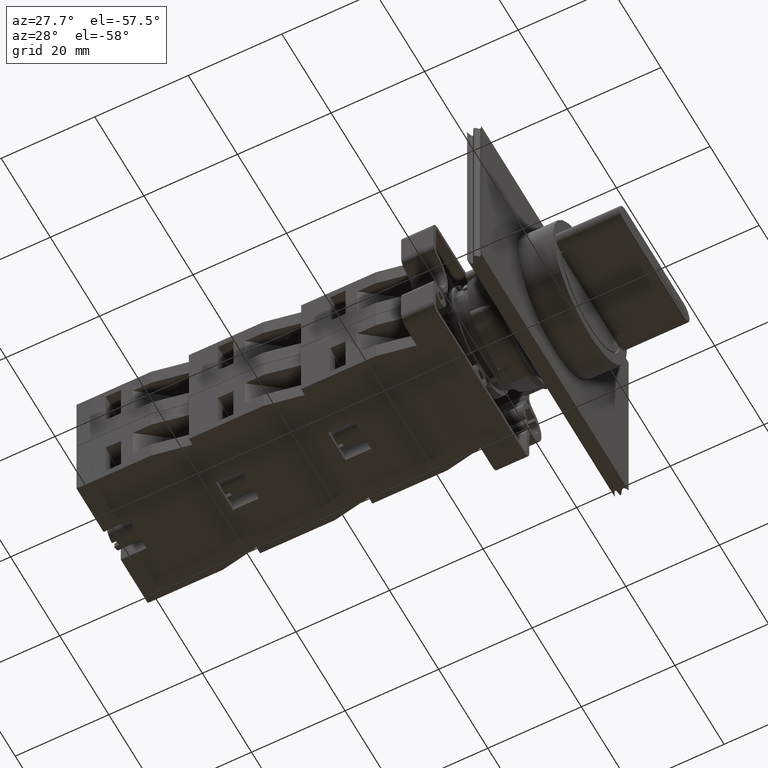
[diagram: clean part render]
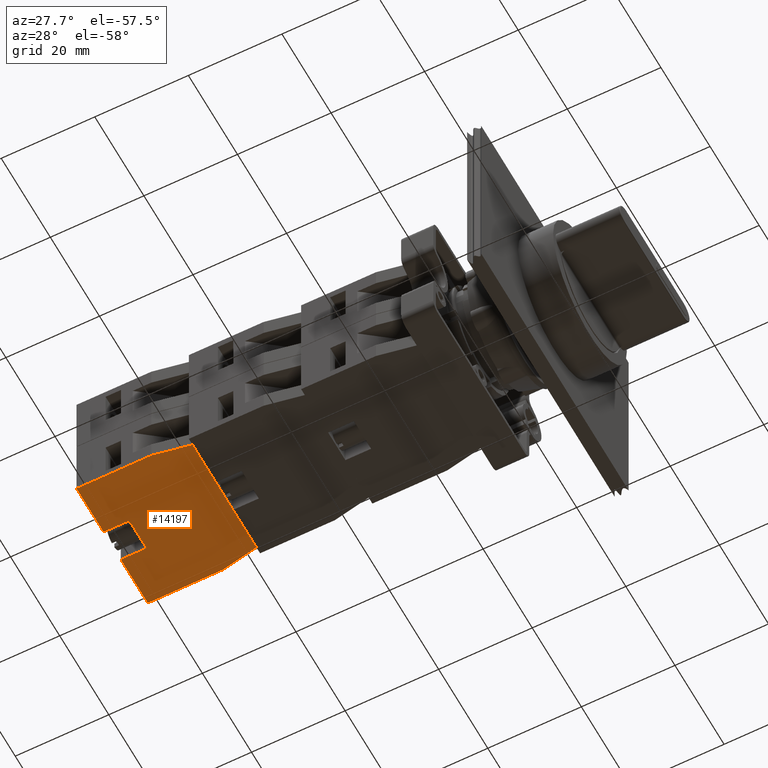
[diagram: same view with one face highlighted and labeled with its STEP entity id]
A machine part, auxiliary view. The second image highlights one B-rep face of the part: STEP entity #14197.
In plain terms, the highlighted planar face has unit normal (-0, 0, -1).
Its self-contained STEP definition (entity closure, byte-faithful):
#12500=CARTESIAN_POINT('',(-44.936741828918457,7.797073323279626,14.699999999999999));
#12501=VERTEX_POINT('',#12500);
#12508=CARTESIAN_POINT('',(-44.936741828918471,23.797073323279623,14.699999999999999));
#12509=VERTEX_POINT('',#12508);
#12510=CARTESIAN_POINT('',(-44.936741828918457,7.797073323279626,14.699999999999999));
#12511=DIRECTION('',(0.0,1.0,0.0));
#12512=VECTOR('',#12511,15.999999999999996);
#12513=LINE('',#12510,#12512);
#12514=EDGE_CURVE('',#12501,#12509,#12513,.T.);
#12581=CARTESIAN_POINT('',(-43.436741828918457,-0.202926676720380,14.699999999999999));
#12582=VERTEX_POINT('',#12581);
#12589=CARTESIAN_POINT('',(-43.436741828918457,-0.202926676720380,14.699999999999999));
#12590=DIRECTION('',(-0.184288535050185,0.982872186934322,0.0));
#12591=VECTOR('',#12590,8.139410298049860);
#12592=LINE('',#12589,#12591);
#12593=EDGE_CURVE('',#12582,#12501,#12592,.T.);
#12732=CARTESIAN_POINT('',(-17.436741828918457,-0.202926676720377,14.699999999999999));
#12733=VERTEX_POINT('',#12732);
#12740=CARTESIAN_POINT('',(-17.436741828918457,-0.202926676720377,14.699999999999999));
#12741=DIRECTION('',(-1.0,0.0,0.0));
#12742=VECTOR('',#12741,26.0);
#12743=LINE('',#12740,#12742);
#12744=EDGE_CURVE('',#12733,#12582,#12743,.T.);
#12825=CARTESIAN_POINT('',(-15.936741828918466,7.797073323279626,14.699999999999999));
#12826=VERTEX_POINT('',#12825);
#12833=CARTESIAN_POINT('',(-15.936741828918466,7.797073323279626,14.699999999999999));
#12834=DIRECTION('',(-0.184288535050184,-0.982872186934322,0.0));
#12835=VECTOR('',#12834,8.139410298049855);
#12836=LINE('',#12833,#12835);
#12837=EDGE_CURVE('',#12826,#12733,#12836,.T.);
#13932=CARTESIAN_POINT('',(-26.936741828918468,18.297073323279626,14.699999999999999));
#13933=VERTEX_POINT('',#13932);
#13942=CARTESIAN_POINT('',(-26.936741828918468,23.797073323279626,14.699999999999999));
#13943=VERTEX_POINT('',#13942);
#13944=CARTESIAN_POINT('',(-26.936741828918468,23.797073323279626,14.699999999999999));
#13945=DIRECTION('',(0.0,-1.0,0.0));
#13946=VECTOR('',#13945,5.500000000000000);
#13947=LINE('',#13944,#13946);
#13948=EDGE_CURVE('',#13943,#13933,#13947,.T.);
#14003=CARTESIAN_POINT('',(-33.936741828918464,18.297073323279619,14.699999999999999));
#14004=VERTEX_POINT('',#14003);
#14012=CARTESIAN_POINT('',(-33.936741828918464,23.797073323279623,14.699999999999999));
#14013=VERTEX_POINT('',#14012);
#14020=CARTESIAN_POINT('',(-33.936741828918464,18.297073323279619,14.699999999999999));
#14021=DIRECTION('',(0.0,1.0,0.0));
#14022=VECTOR('',#14021,5.500000000000004);
#14023=LINE('',#14020,#14022);
#14024=EDGE_CURVE('',#14004,#14013,#14023,.T.);
#14037=CARTESIAN_POINT('',(-26.936741828918468,18.297073323279626,14.699999999999999));
#14038=DIRECTION('',(-1.0,0.0,0.0));
#14039=VECTOR('',#14038,6.999999999999996);
#14040=LINE('',#14037,#14039);
#14041=EDGE_CURVE('',#13933,#14004,#14040,.T.);
#14057=CARTESIAN_POINT('',(-15.936741828918466,23.797073323279626,14.699999999999999));
#14058=VERTEX_POINT('',#14057);
#14059=CARTESIAN_POINT('',(-26.936741828918468,23.797073323279626,14.699999999999999));
#14060=DIRECTION('',(1.0,0.0,0.0));
#14061=VECTOR('',#14060,11.000000000000002);
#14062=LINE('',#14059,#14061);
#14063=EDGE_CURVE('',#13943,#14058,#14062,.T.);
#14080=CARTESIAN_POINT('',(-44.936741828918471,23.797073323279623,14.699999999999999));
#14081=DIRECTION('',(1.0,0.0,0.0));
#14082=VECTOR('',#14081,11.000000000000007);
#14083=LINE('',#14080,#14082);
#14084=EDGE_CURVE('',#12509,#14013,#14083,.T.);
#14128=CARTESIAN_POINT('',(-15.936741828918466,23.797073323279626,14.699999999999999));
#14129=DIRECTION('',(0.0,-1.0,0.0));
#14130=VECTOR('',#14129,16.0);
#14131=LINE('',#14128,#14130);
#14132=EDGE_CURVE('',#14058,#12826,#14131,.T.);
#14180=CARTESIAN_POINT('',(-30.436741828918457,12.124046801833057,14.699999999999999));
#14181=DIRECTION('',(0.0,0.0,1.0));
#14182=DIRECTION('',(1.0,0.0,0.0));
#14183=AXIS2_PLACEMENT_3D('',#14180,#14181,#14182);
#14184=PLANE('',#14183);
#14185=ORIENTED_EDGE('',*,*,#14024,.T.);
#14186=ORIENTED_EDGE('',*,*,#14084,.F.);
#14187=ORIENTED_EDGE('',*,*,#12514,.F.);
#14188=ORIENTED_EDGE('',*,*,#12593,.F.);
#14189=ORIENTED_EDGE('',*,*,#12744,.F.);
#14190=ORIENTED_EDGE('',*,*,#12837,.F.);
#14191=ORIENTED_EDGE('',*,*,#14132,.F.);
#14192=ORIENTED_EDGE('',*,*,#14063,.F.);
#14193=ORIENTED_EDGE('',*,*,#13948,.T.);
#14194=ORIENTED_EDGE('',*,*,#14041,.T.);
#14195=EDGE_LOOP('',(#14185,#14186,#14187,#14188,#14189,#14190,#14191,#14192,#14193,#14194));
#14196=FACE_OUTER_BOUND('',#14195,.T.);
#14197=ADVANCED_FACE('',(#14196),#14184,.T.);